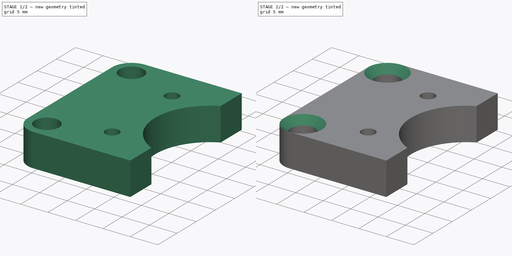
[diagram: build sequence overview — one tinted view per stage of 2, left to right]
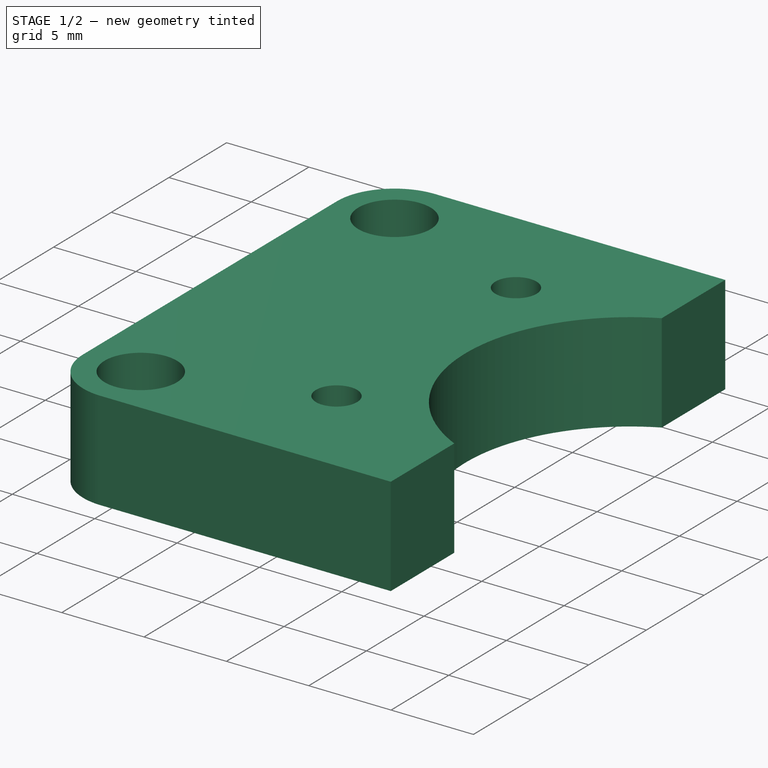
[diagram: stage 1 of 2 — iso view after this stage's code; geometry added in this stage tinted green]
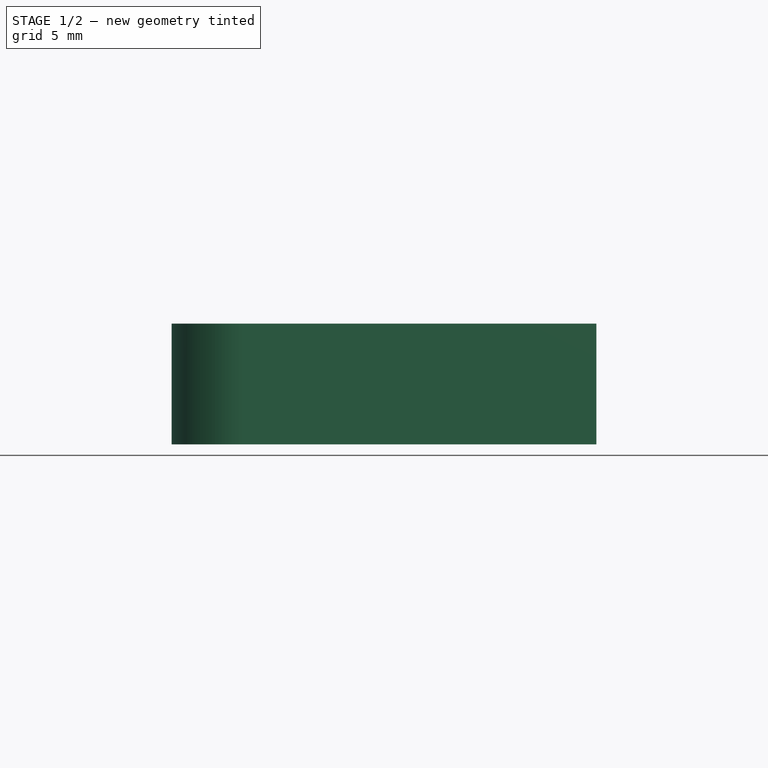
[diagram: stage 1 of 2 — front view after this stage's code; geometry added in this stage tinted green]
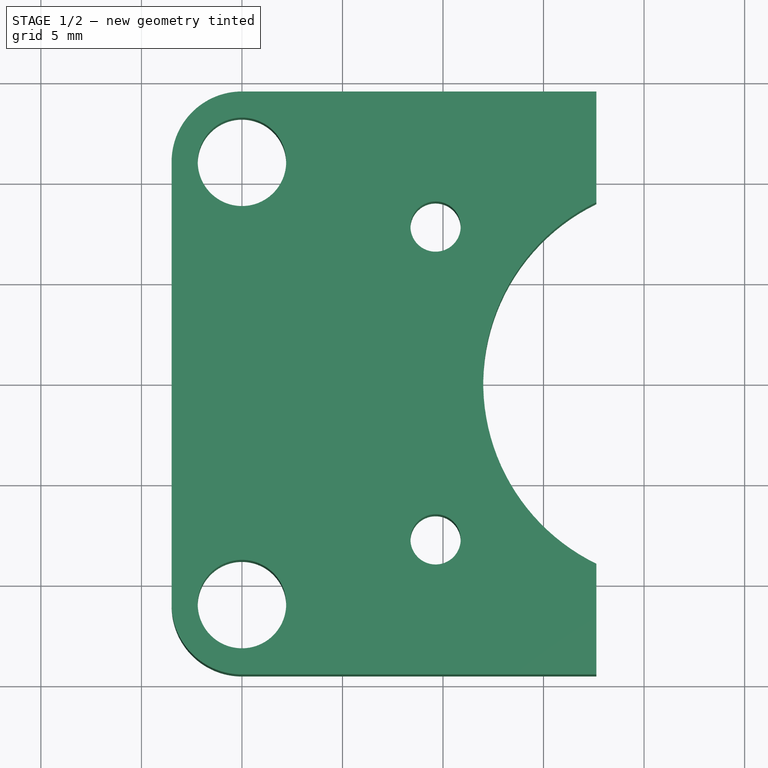
[diagram: stage 1 of 2 — top view after this stage's code; geometry added in this stage tinted green]
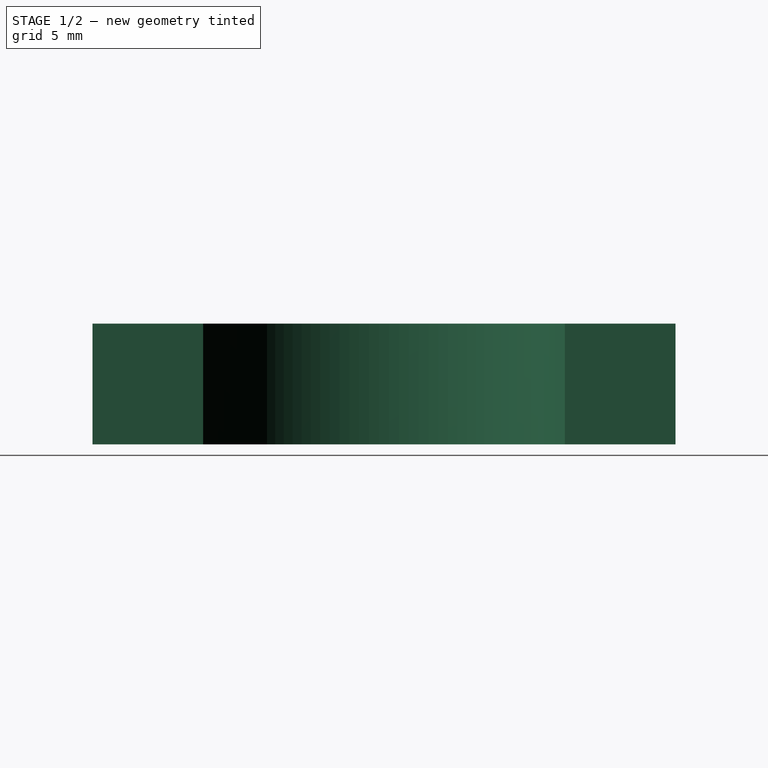
[diagram: stage 1 of 2 — right view after this stage's code; geometry added in this stage tinted green]
FCSTD DOCUMENT  (FreeCAD 0.18.4R)
Label: quimera_imu_spacer
License: All rights reserved
LicenseURL: http://en.wikipedia.org/wiki/All_rights_reserved
objects: Sketcher::SketchObject×1, PartDesign::Pad×1, PartDesign::Chamfer×1, PartDesign::Body×1
note: 5 computed .brp shape members not serialized (recipe doc carries the construction recipe); baked Part::Feature solids carry a one-line shape summary decoded from their .brp

FEATURE [Sketcher::SketchObject] Sketch
  MapMode = 5
  Support = -> [XY_Plane]
  sketch-geometry (16):
    g0: Circle CenterX=0 CenterY=11 CenterZ=0 NormalX=0 NormalY=0 NormalZ=1 AngleXU=0 Radius=2.2
    g1: Circle CenterX=0 CenterY=-11 CenterZ=0 NormalX=0 NormalY=0 NormalZ=1 AngleXU=0 Radius=2.2
    g2: Circle CenterX=9.63 CenterY=7.78 CenterZ=0 NormalX=0 NormalY=0 NormalZ=1 AngleXU=0 Radius=1.25
    g3: Circle CenterX=9.63 CenterY=-7.78 CenterZ=0 NormalX=0 NormalY=0 NormalZ=1 AngleXU=0 Radius=1.25
    g4: LineSegment [constr] StartX=7 StartY=10.555 StartZ=0 EndX=22.75 EndY=10.555 EndZ=0
    g5: LineSegment [constr] StartX=22.75 StartY=10.555 StartZ=0 EndX=22.75 EndY=-10.555 EndZ=0
    g6: LineSegment [constr] StartX=22.75 StartY=-10.555 StartZ=0 EndX=7 EndY=-10.555 EndZ=0
    g7: LineSegment [constr] StartX=7 StartY=-10.555 StartZ=0 EndX=7 EndY=10.555 EndZ=0
    g8: LineSegment StartX=5e-16 StartY=14.5 StartZ=0 EndX=17.63 EndY=14.5 EndZ=0
    g9: LineSegment StartX=17.63 StartY=14.5 StartZ=0 EndX=17.63 EndY=8.99462 EndZ=0
    g10: LineSegment StartX=17.63 StartY=-14.5 StartZ=0 EndX=0 EndY=-14.5 EndZ=0
    g11: LineSegment StartX=-3.5 StartY=-11 StartZ=0 EndX=-3.5 EndY=11 EndZ=0
    g12: ArcOfCircle CenterX=22 CenterY=0 CenterZ=0 NormalX=0 NormalY=0 NormalZ=1 AngleXU=0 Radius=10 StartAngle=2.02306 EndAngle=4.26013
    g13: LineSegment StartX=17.63 StartY=-8.99462 StartZ=0 EndX=17.63 EndY=-14.5 EndZ=0
    g14: ArcOfCircle CenterX=1e-16 CenterY=11 CenterZ=0 NormalX=0 NormalY=0 NormalZ=1 AngleXU=0 Radius=3.5 StartAngle=1.5708 EndAngle=3.14159
    g15: ArcOfCircle CenterX=1e-16 CenterY=-11 CenterZ=0 NormalX=0 NormalY=0 NormalZ=1 AngleXU=0 Radius=3.5 StartAngle=3.14159 EndAngle=4.71239
  constraints (43):
    c: PointOnObject(g0,g-2)
    c: Symmetric(g1,g0,g-1)
    c: Equal(g1,g0)
    c: Radius(g1) = 2.2
    c: DistanceY(g1,g0) = 22
    c: Symmetric(g3,g2,g-1)
    c: Equal(g3,g2)
    c: Radius(g3) = 1.25
    c: DistanceY(g3,g2) = 15.56
    c: Coincident(g4,g5)
    c: Coincident(g5,g6)
    c: Coincident(g6,g7)
    c: Coincident(g7,g4)
    c: Horizontal(g4)
    c: Horizontal(g6)
    c: Vertical(g5)
    c: Symmetric(g4,g6,g-1)
    c: DistanceX(g6,g6) = 15.75
    c: DistanceY(g5,g5) = 21.11
    c: DistanceX(g3,g5) = 13.12
    c: DistanceX(g0,g4) = 7
    c: Coincident(g8,g9)
    c: Coincident(g13,g10)
    c: Horizontal(g8)
    c: Horizontal(g10)
    c: Vertical(g9)
    c: Vertical(g11)
    c: DistanceX(g3,g13) = 8
    c: PointOnObject(g12,g-1)
    c: Radius(g12) = 10
    c: DistanceX(g1,g12) = 22
    c: Coincident(g9,g12)
    c: Coincident(g13,g12)
    c: Tangent(g9,g13)
    c: Equal(g9,g13)
    c: Tangent(g8,g14) = 1.5708
    c: Tangent(g11,g14) = 1.5708
    c: Tangent(g10,g15) = 1.5708
    c: Tangent(g11,g15) = 1.5708
    c: Equal(g15,g14)
    c: Radius(g14) = 3.5
    c: DistanceX(g11,g1) = 3.5
    c: DistanceY(g10,g8) = 29
FEATURE [PartDesign::Pad] Pad
  Length = 6
  Length2 = 100
  Profile = -> Sketch
  Type = 0
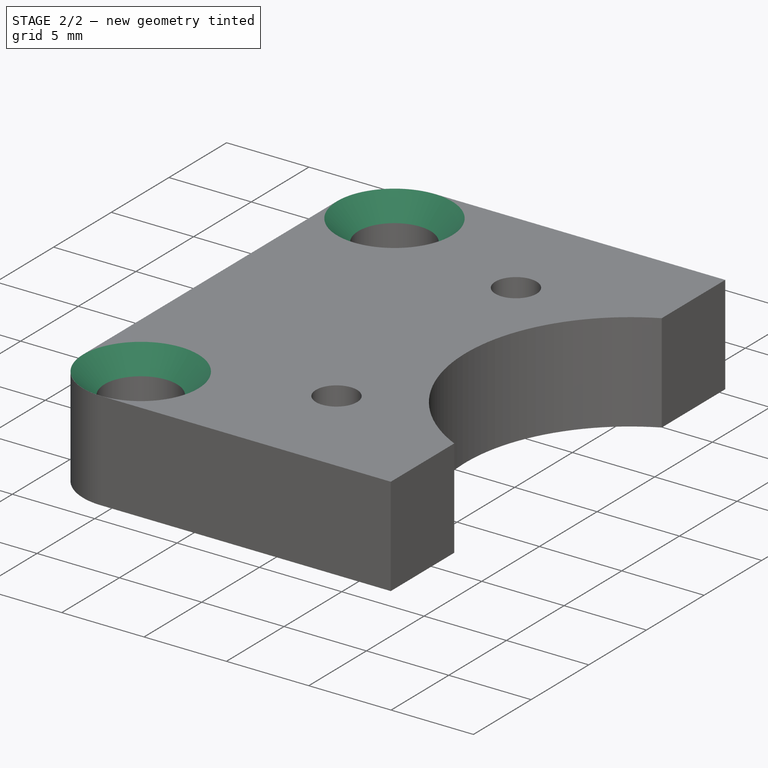
[diagram: stage 2 of 2 — iso view after this stage's code; geometry added in this stage tinted green]
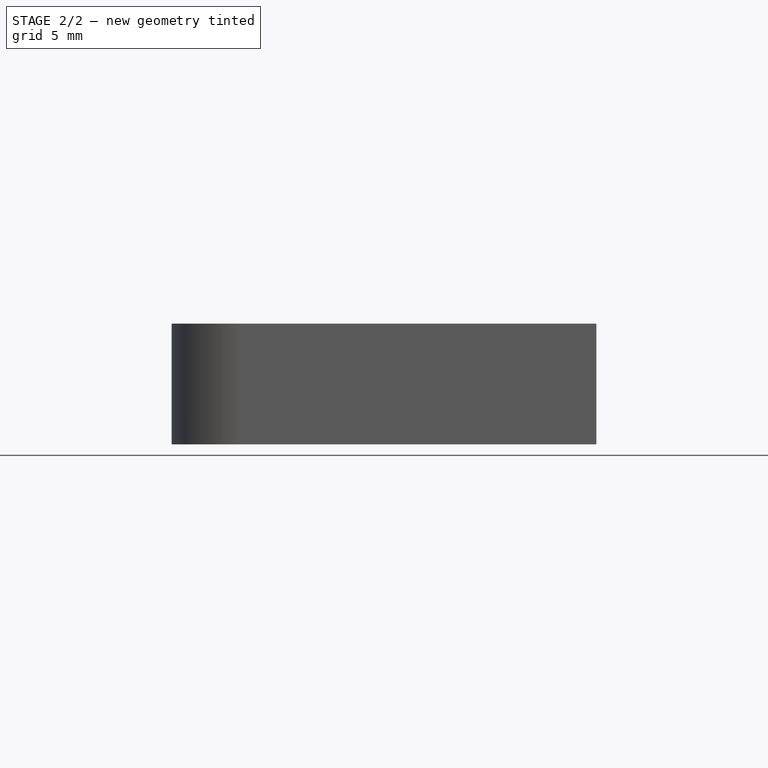
[diagram: stage 2 of 2 — front view after this stage's code; geometry added in this stage tinted green]
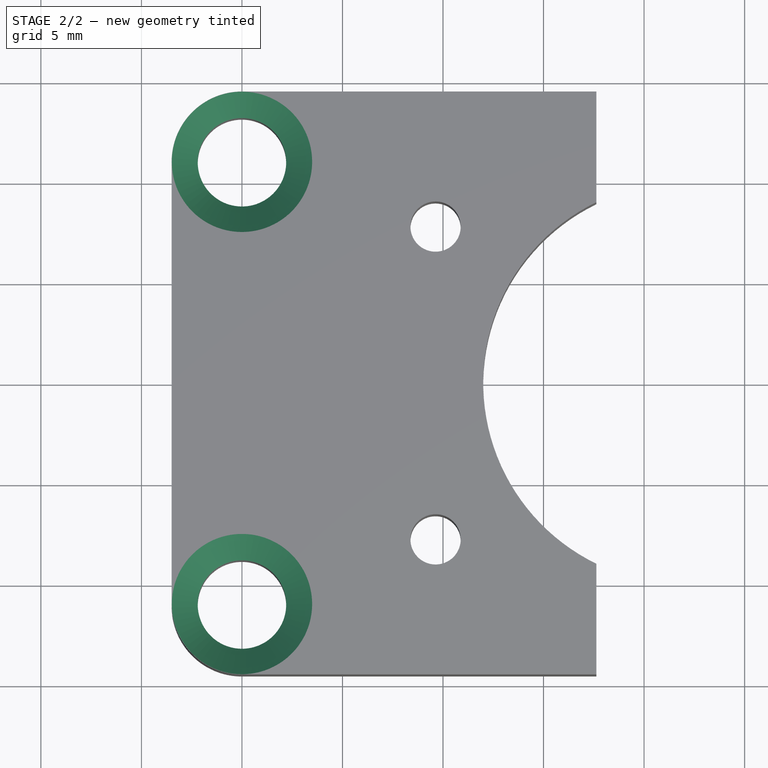
[diagram: stage 2 of 2 — top view after this stage's code; geometry added in this stage tinted green]
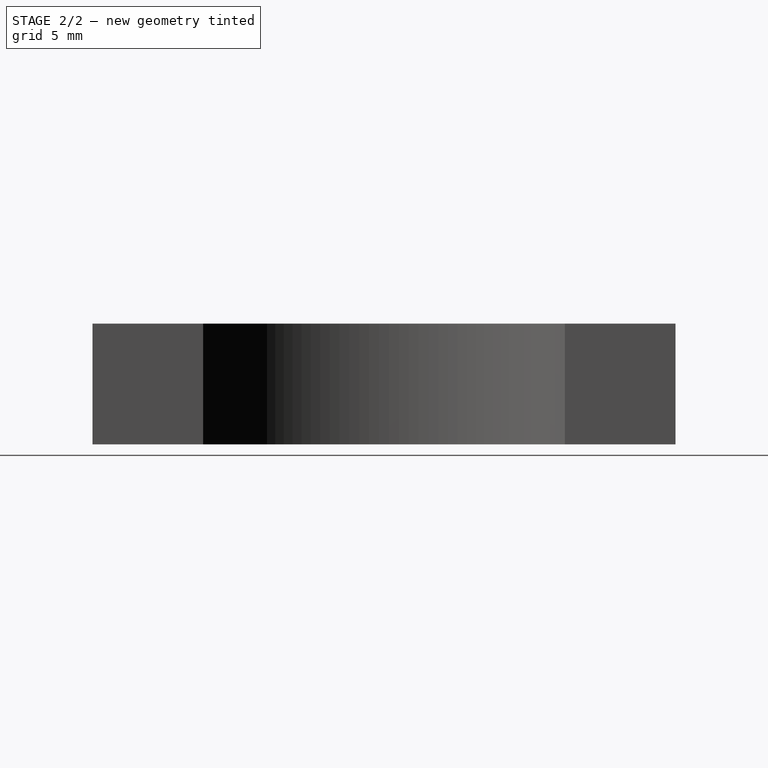
[diagram: stage 2 of 2 — right view after this stage's code; geometry added in this stage tinted green]
FEATURE [PartDesign::Chamfer] Chamfer
  Base = -> Pad [Edge27,Edge30]
  BaseFeature = -> Pad
  Size = 1.29
FEATURE [PartDesign::Body] Body
  Group = -> [Sketch,Pad,Chamfer]
  Origin = -> Origin
  Tip = -> Chamfer
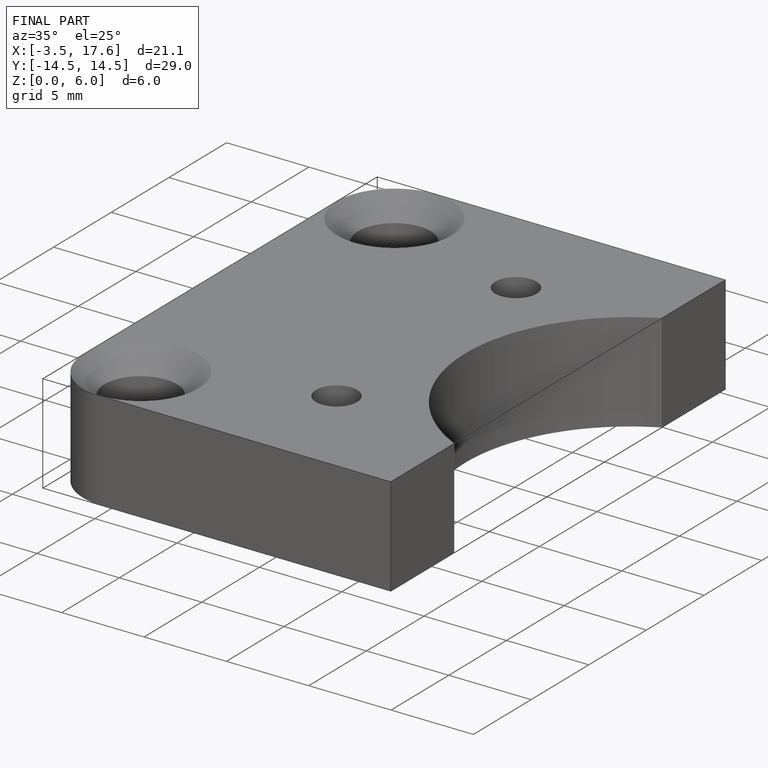
[diagram: finished part — iso view with bounding-box wireframe]
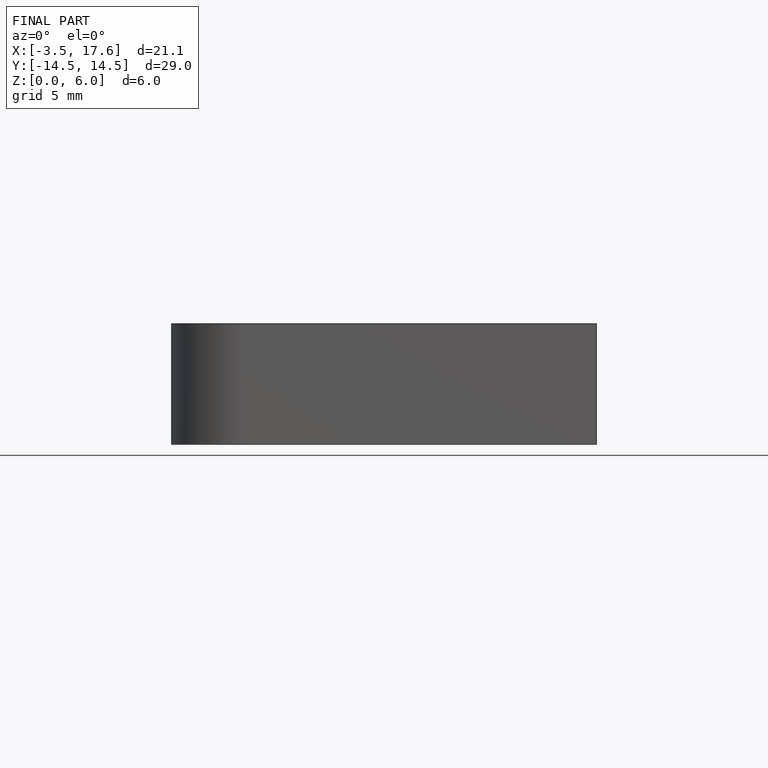
[diagram: finished part — front view with bounding-box wireframe]
